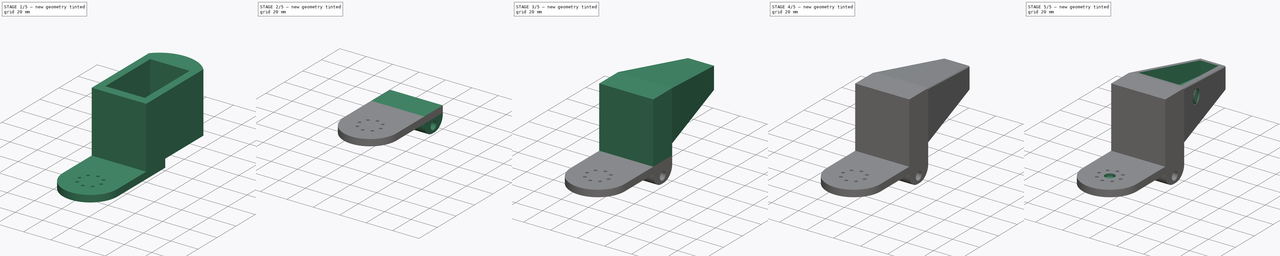
[diagram: build sequence overview — one tinted view per stage of 5, left to right]
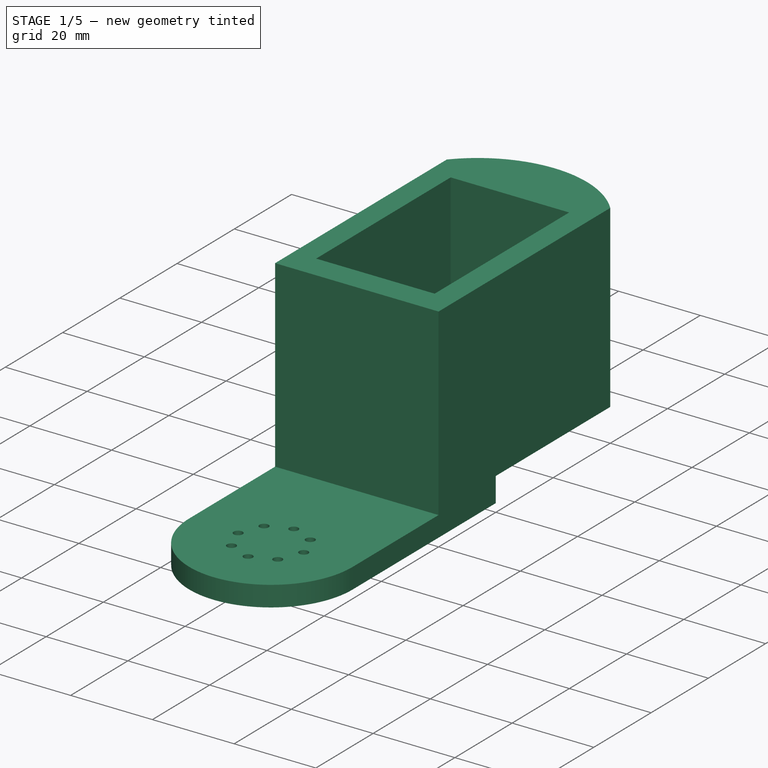
[diagram: stage 1 of 5 — iso view after this stage's code; geometry added in this stage tinted green]
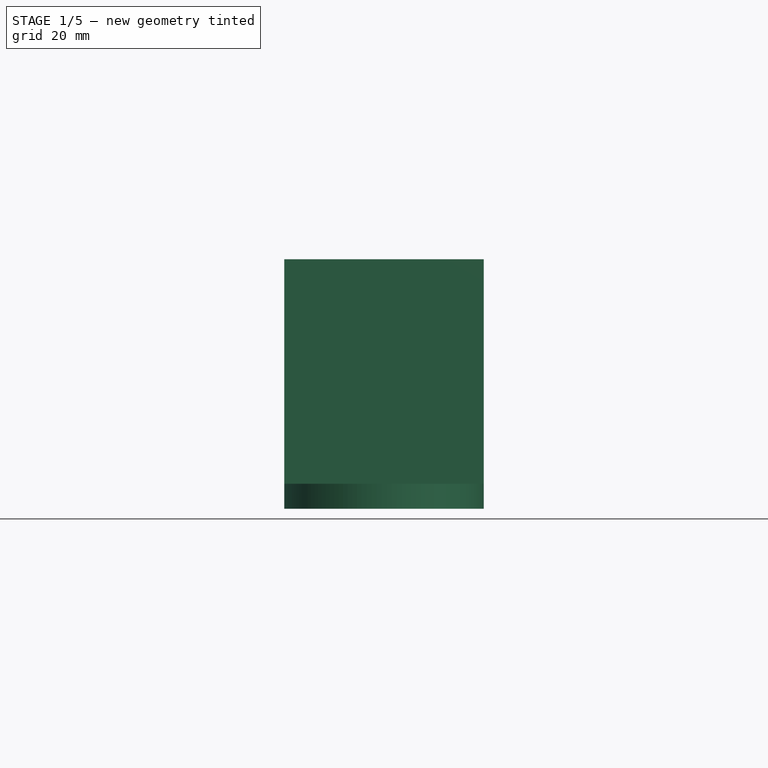
[diagram: stage 1 of 5 — front view after this stage's code; geometry added in this stage tinted green]
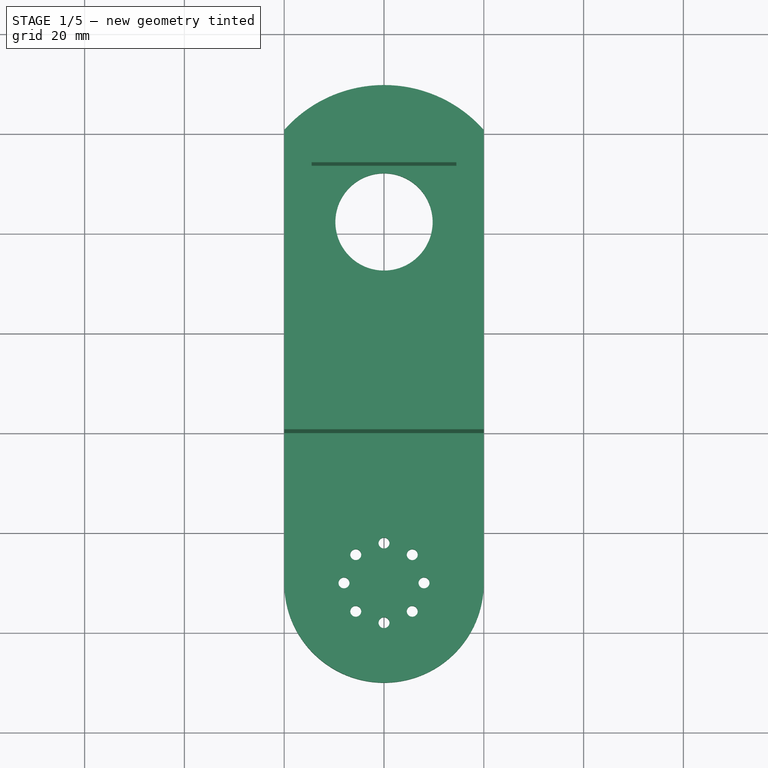
[diagram: stage 1 of 5 — top view after this stage's code; geometry added in this stage tinted green]
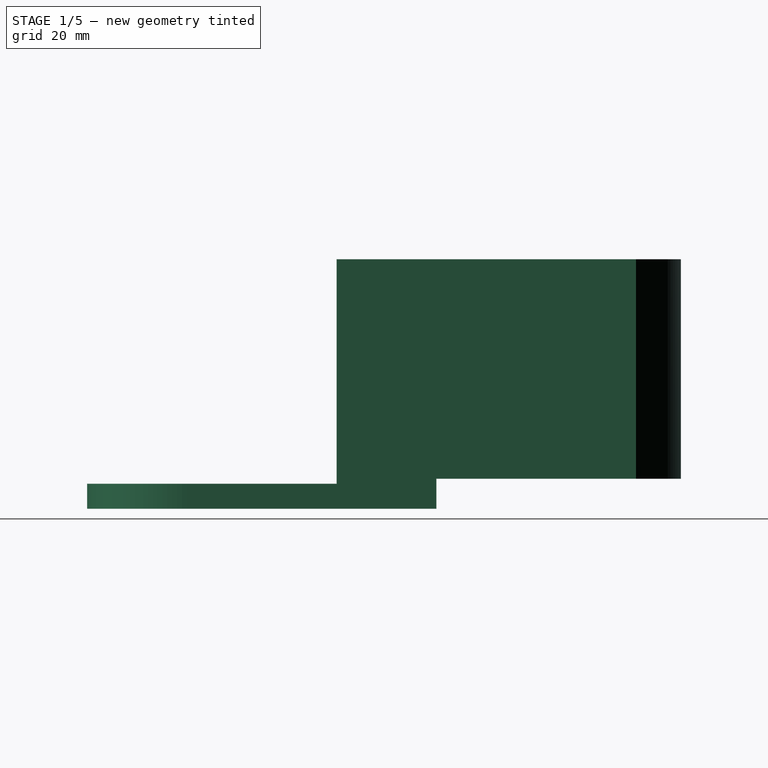
[diagram: stage 1 of 5 — right view after this stage's code; geometry added in this stage tinted green]
FCSTD DOCUMENT  (FreeCAD 0.20R)
Label: Head
License: All rights reserved
LicenseURL: http://en.wikipedia.org/wiki/All_rights_reserved
objects: Sketcher::SketchObject×18, PartDesign::Pocket×11, PartDesign::Fillet×7, PartDesign::Pad×6, PartDesign::Hole×1, PartDesign::Body×1
note: 69 computed .brp shape members not serialized (recipe doc carries the construction recipe); baked Part::Feature solids carry a one-line shape summary decoded from their .brp

FEATURE [Sketcher::SketchObject] Sketch
  AttachmentOffset = pos=(0,0,10) rot=(0,0,1;0rad)
  FullyConstrained = true
  MapMode = 5
  Placement = pos=(0,0,10) rot=(0,0,1;0rad)
  Support = -> [XY_Plane]
  sketch-geometry (8):
    g0: LineSegment StartX=0 StartY=0 StartZ=0 EndX=40 EndY=0 EndZ=0
    g1: LineSegment StartX=40 StartY=0 StartZ=0 EndX=40 EndY=60 EndZ=0
    g2: LineSegment StartX=0 StartY=60 StartZ=0 EndX=0 EndY=0 EndZ=0
    g3: LineSegment StartX=5.5 StartY=6.5 StartZ=0 EndX=34.5 EndY=6.5 EndZ=0
    g4: LineSegment StartX=34.5 StartY=6.5 StartZ=0 EndX=34.5 EndY=53.5 EndZ=0
    g5: LineSegment StartX=34.5 StartY=53.5 StartZ=0 EndX=5.5 EndY=53.5 EndZ=0
    g6: LineSegment StartX=5.5 StartY=53.5 StartZ=0 EndX=5.5 EndY=6.5 EndZ=0
    g7: ArcOfCircle CenterX=20 CenterY=42.25 CenterZ=0 NormalX=0 NormalY=0 NormalZ=1 AngleXU=0 Radius=26.7407 StartAngle=0.725866 EndAngle=2.41573
  constraints (24):
    c: Coincident(g0,g1)
    c: Coincident(g2,g0)
    c: Horizontal(g0)
    c: Vertical(g1)
    c: Vertical(g2)
    c: Coincident(g0,g-1)
    c: Distance(g1) = 60
    c: Distance(g0) = 40
    c: Coincident(g3,g4)
    c: Coincident(g4,g5)
    c: Coincident(g5,g6)
    c: Coincident(g6,g3)
    c: Horizontal(g3)
    c: Horizontal(g5)
    c: Vertical(g4)
    c: Vertical(g6)
    c: Distance(g5) = 29
    c: Distance(g5,g2) = 5.5
    c: Distance(g4) = 47
    c: Distance(g3,g0) = 6.5
    c: Coincident(g7,g1)
    c: Coincident(g7,g2)
    c: Distance(g7,g5) = 11.25
    c: Distance(g2) = 60
FEATURE [PartDesign::Pad] Pad
  Direction = (0,0,1)
  Length = 40
  Length2 = 10
  Profile = -> Sketch
  ReferenceAxis = -> Sketch [N_Axis]
  Type = 0
FEATURE [Sketcher::SketchObject] Sketch001
  FullyConstrained = true
  MapMode = 5
  Placement = pos=(0,0,10) rot=(1,0,0;3.14159rad)
  Support = -> [Pad]
  sketch-geometry (5):
    g0: LineSegment StartX=40 StartY=-60 StartZ=0 EndX=40 EndY=30 EndZ=0
    g1: LineSegment StartX=0 StartY=30 StartZ=0 EndX=0 EndY=-60 EndZ=0
    g2: ArcOfCircle CenterX=20 CenterY=30 CenterZ=0 NormalX=0 NormalY=0 NormalZ=1 AngleXU=0 Radius=20 StartAngle=6.28319 EndAngle=9.42478
    g3: Circle CenterX=20 CenterY=-42.25 CenterZ=0 NormalX=0 NormalY=0 NormalZ=1 AngleXU=0 Radius=9.75
    g4: ArcOfCircle CenterX=20 CenterY=-42.25 CenterZ=0 NormalX=0 NormalY=0 NormalZ=1 AngleXU=0 Radius=26.7407 StartAngle=3.86746 EndAngle=5.55732
  constraints (16):
    c: Vertical(g0)
    c: Vertical(g1)
    c: PointOnObject(g1,g-2)
    c: DistanceY(g0,g0) = 90
    c: DistanceY(g-1,g1) = 30
    c: Distance(g1) = 90
    c: Coincident(g2,g0)
    c: Coincident(g2,g1)
    c: Distance(g0,g2) = 20
    c: Diameter(g3) = 19.5
    c: Distance(g3,g1) = 20
    c: Distance(g3,g0) = 20
    c: Distance(g3,g2) = 72.25
    c: Coincident(g4,g3)
    c: Coincident(g4,g1)
    c: Coincident(g4,g0)
FEATURE [PartDesign::Pad] Pad001
  BaseFeature = -> Pad
  Direction = (0,0,-1)
  Length = 10
  Length2 = 10
  Profile = -> Sketch001
  ReferenceAxis = -> Sketch001 [N_Axis]
  Type = 0
FEATURE [Sketcher::SketchObject] Sketch002
  FullyConstrained = true
  MapMode = 5
  Placement = pos=(0,0,0) rot=(0.57735,-0.57735,-0.57735;2.0944rad)
  Support = -> [Pad001]
  sketch-geometry (4):
    g0: LineSegment StartX=-20 StartY=0 StartZ=0 EndX=-76 EndY=0 EndZ=0
    g1: LineSegment StartX=-76 StartY=0 StartZ=0 EndX=-76 EndY=6 EndZ=0
    g2: LineSegment StartX=-76 StartY=6 StartZ=0 EndX=-20 EndY=6 EndZ=0
    g3: LineSegment StartX=-20 StartY=6 StartZ=0 EndX=-20 EndY=0 EndZ=0
  constraints (12):
    c: Coincident(g0,g1)
    c: Coincident(g1,g2)
    c: Coincident(g2,g3)
    c: Coincident(g3,g0)
    c: Horizontal(g0)
    c: Horizontal(g2)
    c: Vertical(g1)
    c: Vertical(g3)
    c: PointOnObject(g0,g-1)
    c: Distance(g2) = 56
    c: Distance(g3) = 6
    c: Distance(g0,g-1) = 20
FEATURE [PartDesign::Pocket] Pocket
  BaseFeature = -> Pad001
  Direction = (1,0,0)
  Length = 100
  Length2 = 5
  Profile = -> Sketch002
  ReferenceAxis = -> Sketch002 [N_Axis]
  Type = 0
FEATURE [Sketcher::SketchObject] Sketch003
  FullyConstrained = true
  MapMode = 5
  Placement = pos=(0,0,10) rot=(0,0,1;0rad)
  Support = -> [Pocket]
  sketch-geometry (4):
    g0: LineSegment StartX=0 StartY=0 StartZ=0 EndX=40 EndY=0 EndZ=0
    g1: LineSegment StartX=40 StartY=0 StartZ=0 EndX=40 EndY=-30 EndZ=0
    g2: ArcOfCircle CenterX=20 CenterY=-30 CenterZ=0 NormalX=0 NormalY=0 NormalZ=1 AngleXU=0 Radius=20 StartAngle=3.14159 EndAngle=6.28319
    g3: LineSegment StartX=3.6e-15 StartY=-30 StartZ=0 EndX=0 EndY=0 EndZ=0
  constraints (11):
    c: Coincident(g-1,g0)
    c: PointOnObject(g0,g-1)
    c: Coincident(g0,g1)
    c: Vertical(g1)
    c: Tangent(g1,g2) = 1.5708
    c: PointOnObject(g2,g-2)
    c: Coincident(g2,g3)
    c: Coincident(g3,g0)
    c: Distance(g1) = 30
    c: Distance(g0) = 40
    c: Distance(g3) = 30
FEATURE [PartDesign::Pocket] Pocket001
  BaseFeature = -> Pocket
  Direction = (0,0,-1)
  Length = 5
  Length2 = 5
  Profile = -> Sketch003
  ReferenceAxis = -> Sketch003 [N_Axis]
  Type = 0
FEATURE [Sketcher::SketchObject] Sketch005
  FullyConstrained = true
  MapMode = 5
  Placement = pos=(0,0,-4e-15) rot=(1,0,0;3.14159rad)
  sketch-geometry (8):
    g0: Circle CenterX=11.98 CenterY=30 CenterZ=0 NormalX=0 NormalY=0 NormalZ=1 AngleXU=0 Radius=1.1
    g1: Circle CenterX=14.34 CenterY=35.7 CenterZ=0 NormalX=0 NormalY=0 NormalZ=1 AngleXU=0 Radius=1.1
    g2: Circle CenterX=20 CenterY=37.98 CenterZ=0 NormalX=0 NormalY=0 NormalZ=1 AngleXU=0 Radius=1.1
    g3: Circle CenterX=25.66 CenterY=35.7 CenterZ=0 NormalX=0 NormalY=0 NormalZ=1 AngleXU=0 Radius=1.1
    g4: Circle CenterX=28.02 CenterY=30 CenterZ=0 NormalX=0 NormalY=0 NormalZ=1 AngleXU=0 Radius=1.1
    g5: Circle CenterX=25.66 CenterY=24.35 CenterZ=0 NormalX=0 NormalY=0 NormalZ=1 AngleXU=0 Radius=1.1
    g6: Circle CenterX=20 CenterY=22.02 CenterZ=0 NormalX=0 NormalY=0 NormalZ=1 AngleXU=0 Radius=1.1
    g7: Circle CenterX=14.34 CenterY=24.34 CenterZ=0 NormalX=0 NormalY=0 NormalZ=1 AngleXU=0 Radius=1.1
  constraints (24):
    c: Distance(g0,g-2) = 11.98
    c: Distance(g0,g-1) = 30
    c: Diameter(g0) = 2.2
    c: Diameter(g1) = 2.2
    c: Diameter(g2) = 2.2
    c: Diameter(g3) = 2.2
    c: Diameter(g4) = 2.2
    c: Diameter(g5) = 2.2
    c: Diameter(g6) = 2.2
    c: Diameter(g7) = 2.2
    c: Distance(g4,g-1) = 30
    c: Distance(g6,g-2) = 20
    c: Distance(g2,g-2) = 20
    c: Distance(g1,g-2) = 14.34
    c: Distance(g7,g-2) = 14.34
    c: Distance(g3,g-2) = 25.66
    c: DistanceX(g-2,g5) = 25.66
    c: Distance(g4,g-2) = 28.02
    c: Distance(g6,g-1) = 22.02
    c: Distance(g2,g-1) = 37.98
    c: Distance(g7,g-1) = 24.34
    c: Distance(g5,g-1) = 24.35
    c: Distance(g3,g-1) = 35.7
    c: Distance(g1,g-1) = 35.7
FEATURE [PartDesign::Pocket] Pocket002
  BaseFeature = -> Pocket001
  Direction = (0,0,1)
  Length = 5
  Length2 = 5
  Profile = -> Sketch005
  ReferenceAxis = -> Sketch005 [N_Axis]
  Type = 0
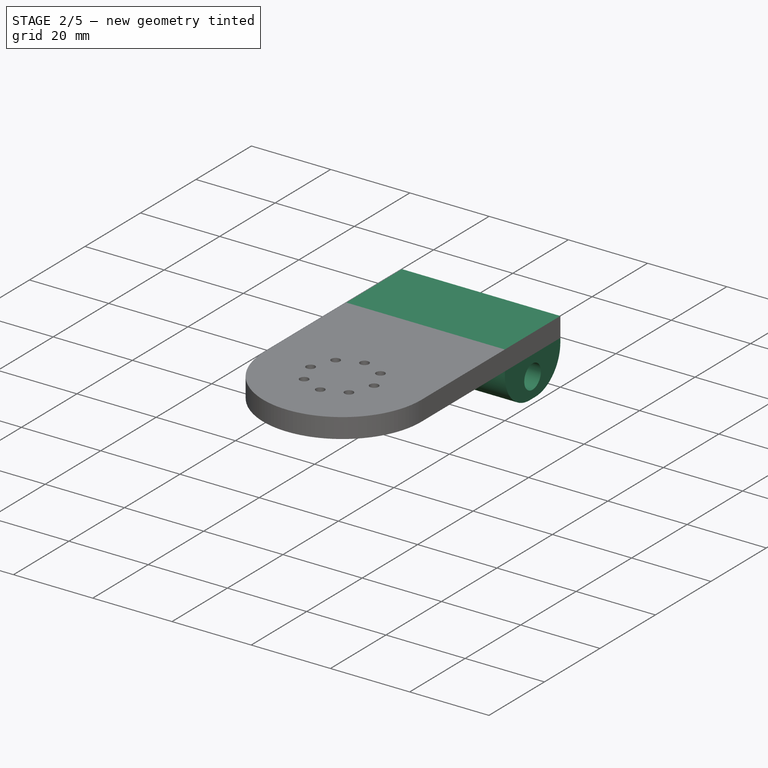
[diagram: stage 2 of 5 — iso view after this stage's code; geometry added in this stage tinted green]
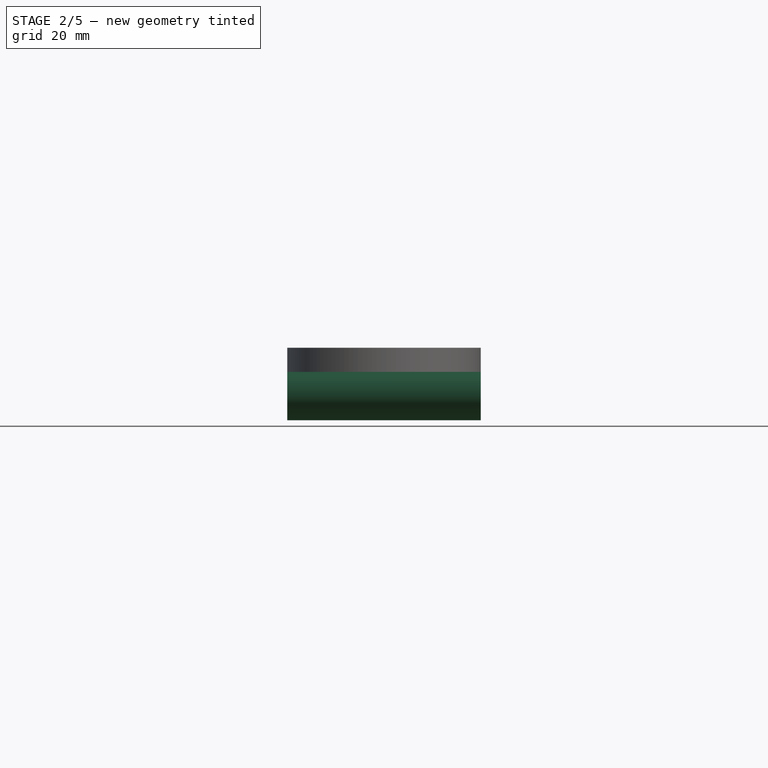
[diagram: stage 2 of 5 — front view after this stage's code; geometry added in this stage tinted green]
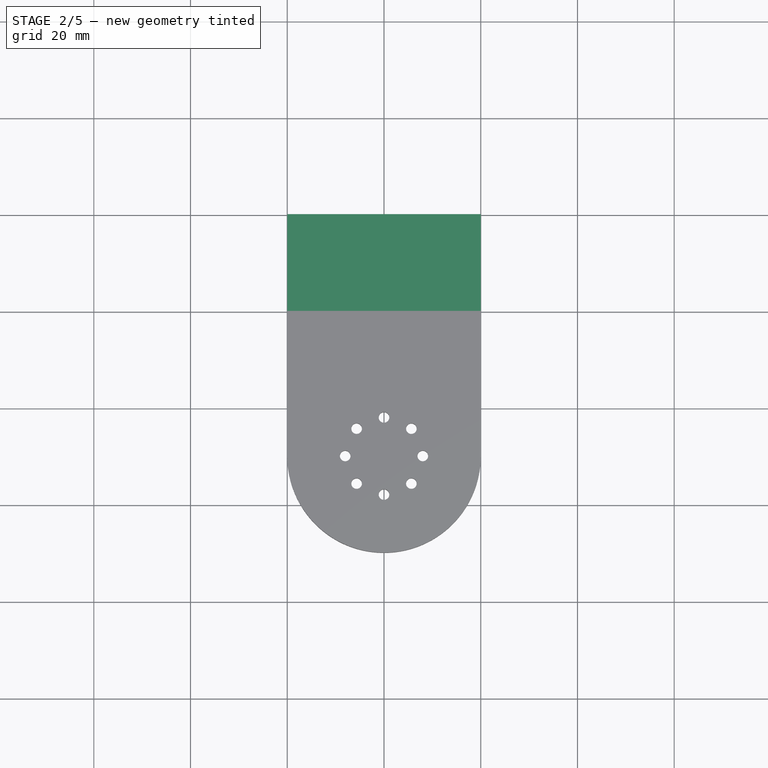
[diagram: stage 2 of 5 — top view after this stage's code; geometry added in this stage tinted green]
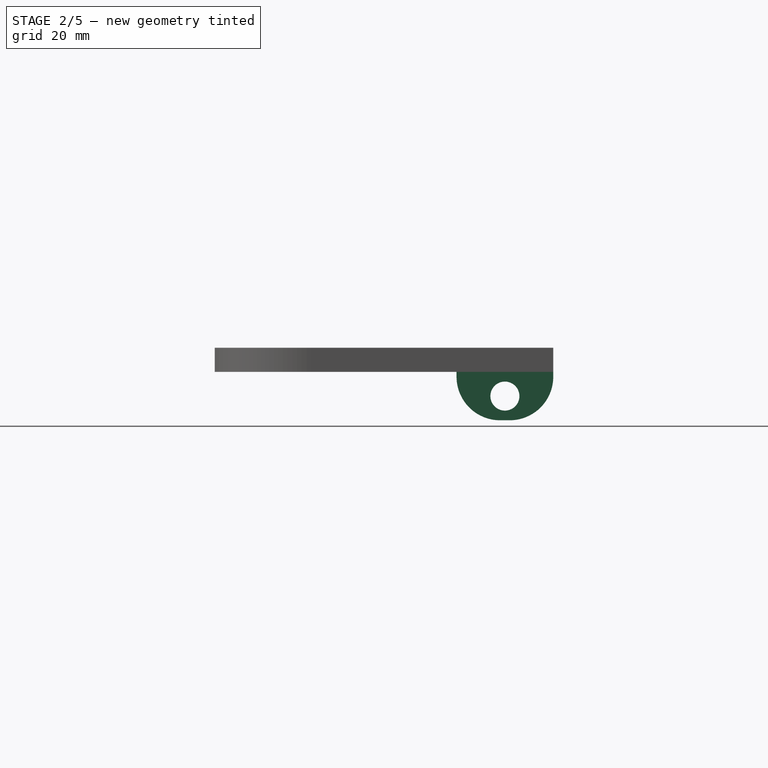
[diagram: stage 2 of 5 — right view after this stage's code; geometry added in this stage tinted green]
FEATURE [Sketcher::SketchObject] Sketch006
  FullyConstrained = true
  MapMode = 5
  Placement = pos=(0,0,-3.6e-15) rot=(1,0,0;3.14159rad)
  Support = -> [Pocket002]
  sketch-geometry (4):
    g0: LineSegment StartX=0 StartY=0 StartZ=0 EndX=40 EndY=0 EndZ=0
    g1: LineSegment StartX=40 StartY=0 StartZ=0 EndX=40 EndY=-20 EndZ=0
    g2: LineSegment StartX=40 StartY=-20 StartZ=0 EndX=0 EndY=-20 EndZ=0
    g3: LineSegment StartX=0 StartY=-20 StartZ=0 EndX=0 EndY=0 EndZ=0
  constraints (11):
    c: Coincident(g0,g1)
    c: Coincident(g1,g2)
    c: Coincident(g2,g3)
    c: Coincident(g3,g0)
    c: Horizontal(g0)
    c: Horizontal(g2)
    c: Vertical(g1)
    c: Vertical(g3)
    c: Coincident(g0,g-1)
    c: Distance(g0) = 40
    c: Distance(g3) = 20
FEATURE [PartDesign::Pad] Pad002
  BaseFeature = -> Pocket002
  Direction = (0,0,-1)
  Length = 10
  Length2 = 10
  Profile = -> Sketch006
  ReferenceAxis = -> Sketch006 [N_Axis]
  Type = 0
FEATURE [PartDesign::Fillet] Fillet
  Base = -> Pad002 [Edge82]
  BaseFeature = -> Pad002
  Radius = 9
  SupportTransform = false
  UseAllEdges = false
FEATURE [PartDesign::Fillet] Fillet001
  Base = -> Fillet [Edge20]
  BaseFeature = -> Fillet
  Radius = 9
  SupportTransform = false
  UseAllEdges = false
FEATURE [Sketcher::SketchObject] Sketch007
  FullyConstrained = true
  MapMode = 5
  Placement = pos=(40,0,0) rot=(0.57735,0.57735,0.57735;2.0944rad)
  Support = -> [Fillet001]
  sketch-geometry (1):
    g0: Circle CenterX=10 CenterY=-5 CenterZ=0 NormalX=0 NormalY=0 NormalZ=1 AngleXU=0 Radius=2.5
  constraints (3):
    c: Diameter(g0) = 5
    c: Distance(g0,g-1) = 5
    c: Distance(g0,g-2) = 10
FEATURE [PartDesign::Hole] Hole
  BaseFeature = -> Fillet001
  CustomThreadClearance = 0
  Depth = 50
  DepthType = 0
  Diameter = 6
  DrillForDepth = false
  DrillPoint = 1
  DrillPointAngle = 118
  HoleCutCountersinkAngle = 90
  HoleCutCustomValues = false
  HoleCutDepth = 0
  HoleCutDiameter = 6.1
  HoleCutType = 0
  ModelThread = false
  Profile = -> Sketch007
  Tapered = false
  TaperedAngle = 90
  ThreadClass = 0
  ThreadDepth = 50
  ThreadDepthType = 0
  ThreadDirection = 0
  ThreadFit = 0
  ThreadSize = 0
  ThreadType = 0
  Threaded = false
  UseCustomThreadClearance = false
FEATURE [Sketcher::SketchObject] Sketch009
  FullyConstrained = true
  MapMode = 5
  Placement = pos=(0,0,0) rot=(1,0,0;1.5708rad)
  Support = -> [Hole]
  sketch-geometry (4):
    g0: LineSegment StartX=0 StartY=5 StartZ=0 EndX=40 EndY=5 EndZ=0
    g1: LineSegment StartX=40 StartY=5 StartZ=0 EndX=40 EndY=50 EndZ=0
    g2: LineSegment StartX=40 StartY=50 StartZ=0 EndX=0 EndY=50 EndZ=0
    g3: LineSegment StartX=0 StartY=50 StartZ=0 EndX=0 EndY=5 EndZ=0
  constraints (12):
    c: Coincident(g0,g1)
    c: Coincident(g1,g2)
    c: Coincident(g2,g3)
    c: Coincident(g3,g0)
    c: Horizontal(g0)
    c: Horizontal(g2)
    c: Vertical(g1)
    c: Vertical(g3)
    c: PointOnObject(g0,g-2)
    c: Distance(g2) = 40
    c: Distance(g3) = 45
    c: Distance(g-1,g0) = 5
FEATURE [PartDesign::Pocket] Pocket003
  BaseFeature = -> Hole
  Direction = (0,1,-2e-16)
  Length = 5
  Length2 = 5
  Profile = -> Sketch009
  ReferenceAxis = -> Sketch009 [N_Axis]
  Type = 1
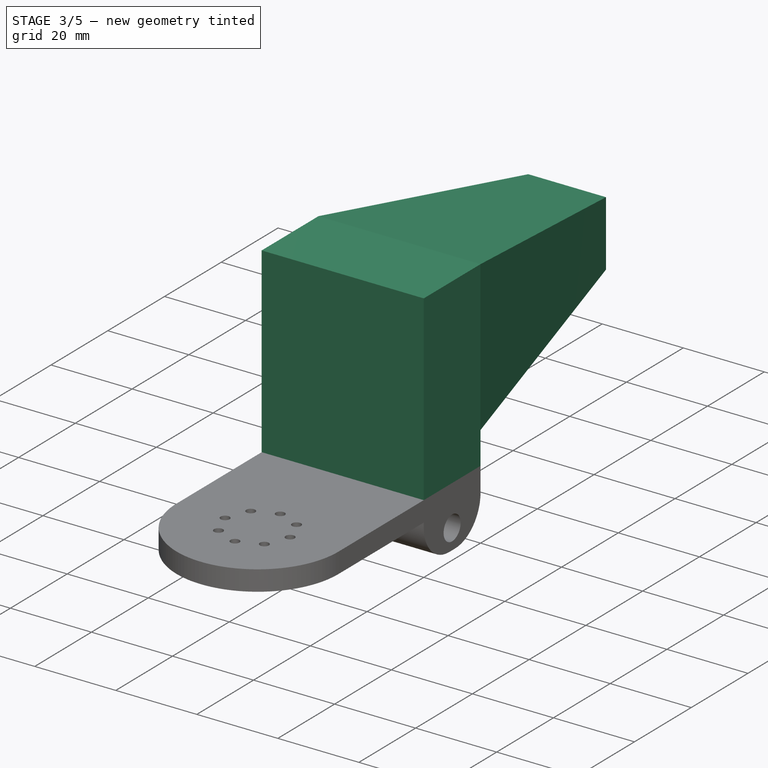
[diagram: stage 3 of 5 — iso view after this stage's code; geometry added in this stage tinted green]
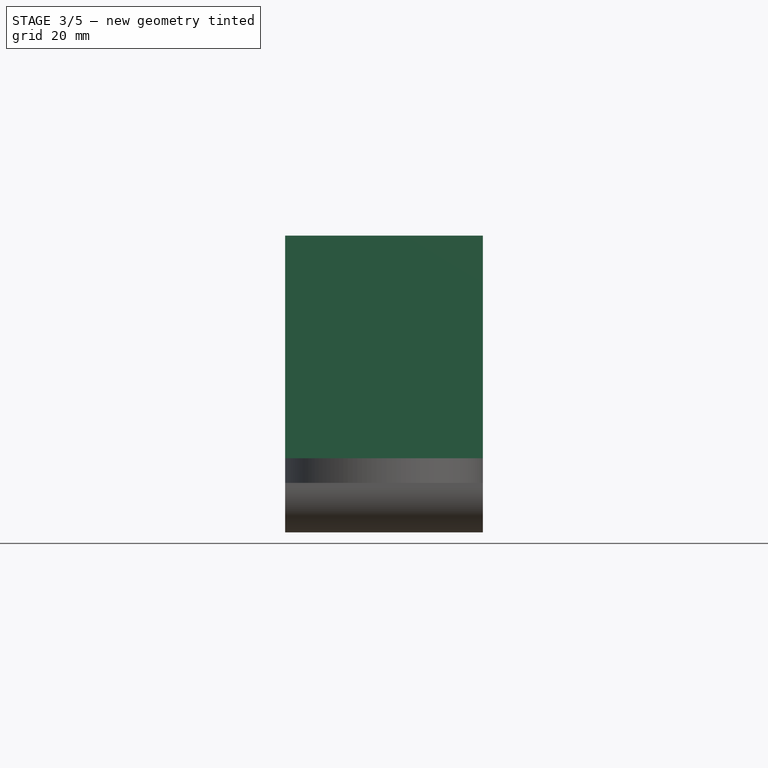
[diagram: stage 3 of 5 — front view after this stage's code; geometry added in this stage tinted green]
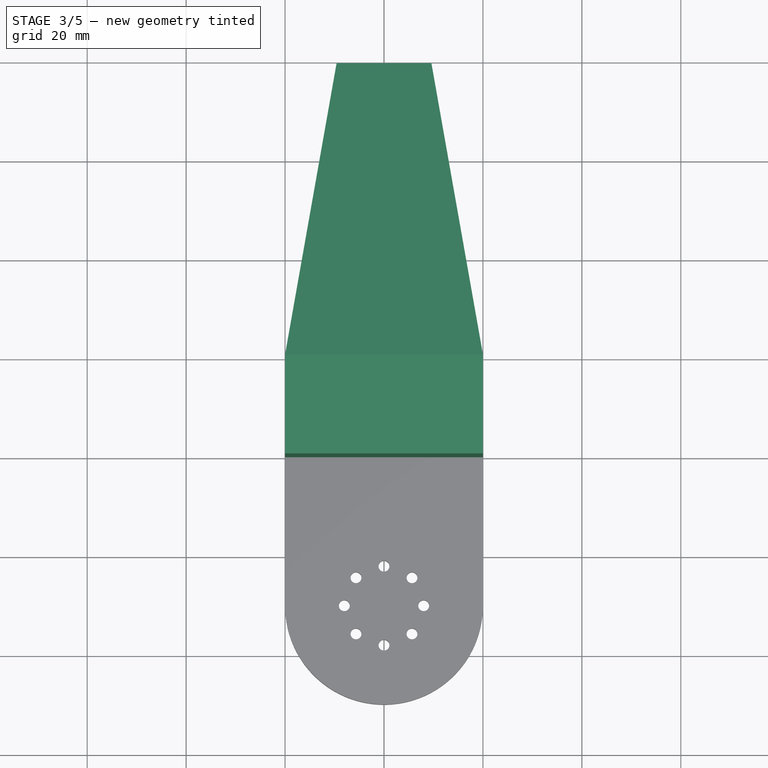
[diagram: stage 3 of 5 — top view after this stage's code; geometry added in this stage tinted green]
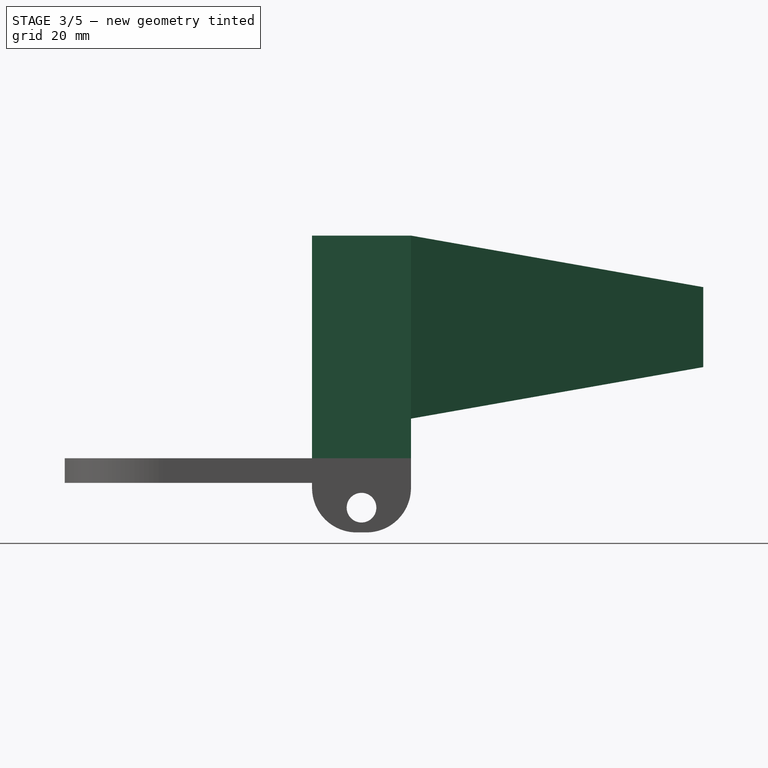
[diagram: stage 3 of 5 — right view after this stage's code; geometry added in this stage tinted green]
FEATURE [Sketcher::SketchObject] Sketch010
  FullyConstrained = true
  MapMode = 5
  Placement = pos=(0,20,0) rot=(0,0.707107,0.707107;3.14159rad)
  Support = -> [Pocket003]
  sketch-geometry (4):
    g0: LineSegment StartX=0 StartY=0 StartZ=0 EndX=-40 EndY=0 EndZ=0
    g1: LineSegment StartX=-40 StartY=0 StartZ=0 EndX=-40 EndY=5 EndZ=0
    g2: LineSegment StartX=-40 StartY=5 StartZ=0 EndX=0 EndY=5 EndZ=0
    g3: LineSegment StartX=0 StartY=5 StartZ=0 EndX=0 EndY=0 EndZ=0
  constraints (11):
    c: Coincident(g0,g1)
    c: Coincident(g1,g2)
    c: Coincident(g2,g3)
    c: Coincident(g3,g0)
    c: Horizontal(g0)
    c: Horizontal(g2)
    c: Vertical(g1)
    c: Vertical(g3)
    c: Coincident(g0,g-1)
    c: Distance(g2) = 40
    c: Distance(g1) = 5
FEATURE [PartDesign::Pad] Pad003
  BaseFeature = -> Pocket003
  Direction = (0,1,-2e-16)
  Length = 50
  Length2 = 10
  Profile = -> Sketch010
  ReferenceAxis = -> Sketch010 [N_Axis]
  Type = 0
FEATURE [Sketcher::SketchObject] Sketch011
  FullyConstrained = true
  MapMode = 5
  Placement = pos=(0,1.1e-15,5) rot=(0,0,1;0rad)
  Support = -> [Pad003]
  sketch-geometry (4):
    g0: LineSegment StartX=0 StartY=0 StartZ=0 EndX=40 EndY=0 EndZ=0
    g1: LineSegment StartX=40 StartY=0 StartZ=0 EndX=40 EndY=70 EndZ=0
    g2: LineSegment StartX=40 StartY=70 StartZ=0 EndX=0 EndY=70 EndZ=0
    g3: LineSegment StartX=0 StartY=70 StartZ=0 EndX=0 EndY=0 EndZ=0
  constraints (11):
    c: Coincident(g0,g1)
    c: Coincident(g1,g2)
    c: Coincident(g2,g3)
    c: Coincident(g3,g0)
    c: Horizontal(g0)
    c: Horizontal(g2)
    c: Vertical(g1)
    c: Vertical(g3)
    c: Coincident(g0,g-1)
    c: Distance(g2) = 40
    c: Distance(g3) = 70
FEATURE [PartDesign::Pad] Pad004
  BaseFeature = -> Pad003
  Direction = (0,2e-16,1)
  Length = 45
  Length2 = 10
  Profile = -> Sketch011
  ReferenceAxis = -> Sketch011 [N_Axis]
  Type = 0
FEATURE [Sketcher::SketchObject] Sketch012
  FullyConstrained = true
  MapMode = 5
  Placement = pos=(0,70,0) rot=(0,0.707107,0.707107;3.14159rad)
  Support = -> [Pad004]
  sketch-geometry (4):
    g0: LineSegment StartX=0 StartY=0 StartZ=0 EndX=-40 EndY=0 EndZ=0
    g1: LineSegment StartX=-40 StartY=0 StartZ=0 EndX=-40 EndY=50 EndZ=0
    g2: LineSegment StartX=-40 StartY=50 StartZ=0 EndX=0 EndY=50 EndZ=0
    g3: LineSegment StartX=0 StartY=50 StartZ=0 EndX=0 EndY=0 EndZ=0
  constraints (11):
    c: Coincident(g0,g1)
    c: Coincident(g1,g2)
    c: Coincident(g2,g3)
    c: Coincident(g3,g0)
    c: Horizontal(g0)
    c: Horizontal(g2)
    c: Vertical(g1)
    c: Vertical(g3)
    c: Coincident(g0,g-1)
    c: Distance(g2) = 40
    c: Distance(g1) = 50
FEATURE [PartDesign::Pad] Pad005
  BaseFeature = -> Pad004
  Direction = (0,1,-2e-16)
  Length = 50
  Length2 = 10
  Profile = -> Sketch012
  ReferenceAxis = -> Sketch012 [N_Axis]
  Type = 0
FEATURE [Sketcher::SketchObject] Sketch013
  FullyConstrained = true
  MapMode = 5
  Placement = pos=(0,1.14e-14,50) rot=(0,0,1;0rad)
  Support = -> [Pad005]
  sketch-geometry (6):
    g0: LineSegment StartX=40 StartY=20 StartZ=0 EndX=29.5811 EndY=79.0885 EndZ=0
    g1: LineSegment StartX=29.5811 StartY=79.0885 StartZ=0 EndX=10.4189 EndY=79.0885 EndZ=0
    g2: LineSegment StartX=10.4189 StartY=79.0885 StartZ=0 EndX=0 EndY=20 EndZ=0
    g3: LineSegment StartX=0 StartY=20 StartZ=0 EndX=0 EndY=120 EndZ=0
    g4: LineSegment StartX=0 StartY=120 StartZ=0 EndX=40 EndY=120 EndZ=0
    g5: LineSegment StartX=40 StartY=120 StartZ=0 EndX=40 EndY=20 EndZ=0
  constraints (18):
    c: PointOnObject(g2,g-2)
    c: Coincident(g0,g1)
    c: Horizontal(g1)
    c: Coincident(g1,g2)
    c: Distance(g-1,g2) = 20
    c: Distance(g2) = 60
    c: Distance(g0) = 60
    c: Coincident(g2,g3)
    c: PointOnObject(g3,g-2)
    c: Coincident(g3,g4)
    c: Horizontal(g4)
    c: Coincident(g4,g5)
    c: Coincident(g5,g0)
    c: Vertical(g5)
    c: Distance(g3) = 100
    c: Distance(g4) = 40
    c: Distance(g5) = 100
    c: Angle(g5,g0) = 0.174533
FEATURE [PartDesign::Pocket] Pocket004
  BaseFeature = -> Pad005
  Direction = (0,-2e-16,-1)
  Length = 5
  Length2 = 5
  Profile = -> Sketch013
  ReferenceAxis = -> Sketch013 [N_Axis]
  Type = 1
FEATURE [Sketcher::SketchObject] Sketch014
  FullyConstrained = true
  MapMode = 5
  Placement = pos=(40,0,0) rot=(0.57735,0.57735,0.57735;2.0944rad)
  Support = -> [Pocket004]
  sketch-geometry (7):
    g0: LineSegment StartX=80 StartY=0 StartZ=0 EndX=80 EndY=50 EndZ=0
    g1: LineSegment StartX=20 StartY=0 StartZ=0 EndX=20 EndY=13 EndZ=0
    g2: LineSegment StartX=20 StartY=13 StartZ=0 EndX=84.0125 EndY=24.2871 EndZ=0
    g3: LineSegment StartX=84.0125 StartY=24.2871 StartZ=0 EndX=84.0125 EndY=38.7129 EndZ=0
    g4: LineSegment StartX=84.0125 StartY=38.7129 StartZ=0 EndX=20 EndY=50 EndZ=0
    g5: LineSegment StartX=20 StartY=50 StartZ=0 EndX=80 EndY=50 EndZ=0
    g6: LineSegment StartX=20 StartY=0 StartZ=0 EndX=80 EndY=0 EndZ=0
  constraints (21):
    c: Vertical(g0)
    c: PointOnObject(g1,g-1)
    c: Vertical(g1)
    c: Coincident(g1,g2)
    c: Coincident(g2,g3)
    c: Vertical(g3)
    c: Coincident(g3,g4)
    c: Coincident(g4,g5)
    c: Coincident(g5,g0)
    c: Horizontal(g5)
    c: Coincident(g1,g6)
    c: Coincident(g6,g0)
    c: Horizontal(g6)
    c: Distance(g6) = 60
    c: Distance(g0) = 50
    c: Distance(g5) = 60
    c: Distance(g1) = 13
    c: Angle(g1,g2) = 1.74533
    c: Angle(g4,g5) = 0.174533
    c: Distance(g4) = 65
    c: Distance(g-1,g1) = 20
FEATURE [PartDesign::Pocket] Pocket005
  BaseFeature = -> Pocket004
  Direction = (-1,0,0)
  Length = 5
  Length2 = 5
  Profile = -> Sketch014
  ReferenceAxis = -> Sketch014 [N_Axis]
  Type = 1
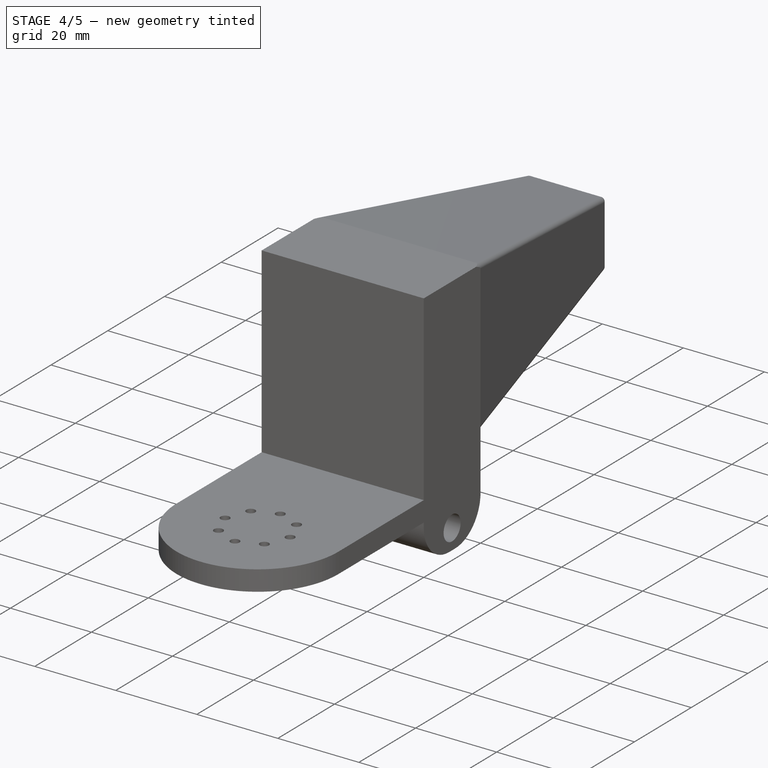
[diagram: stage 4 of 5 — iso view after this stage's code; geometry added in this stage tinted green]
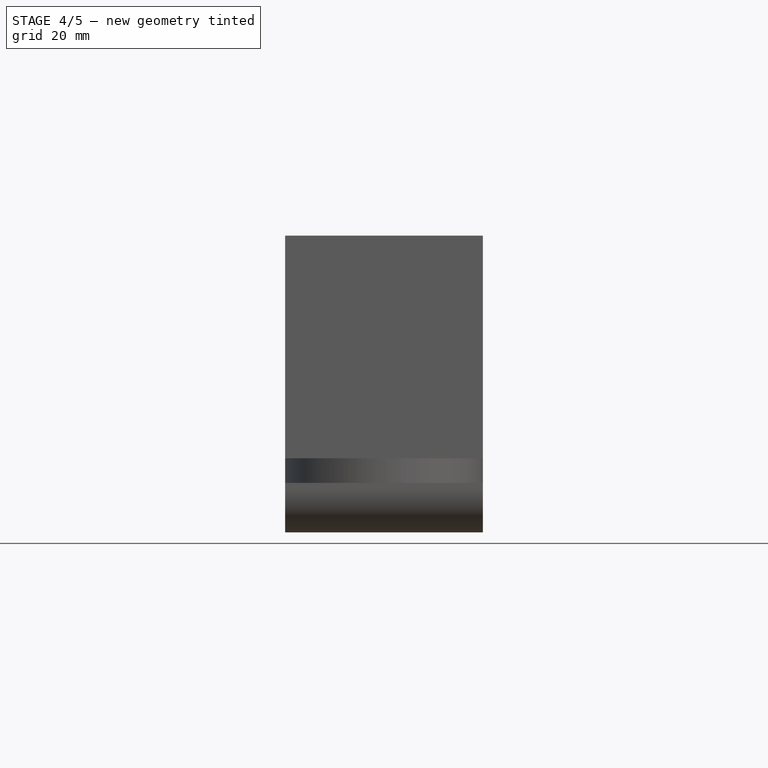
[diagram: stage 4 of 5 — front view after this stage's code; geometry added in this stage tinted green]
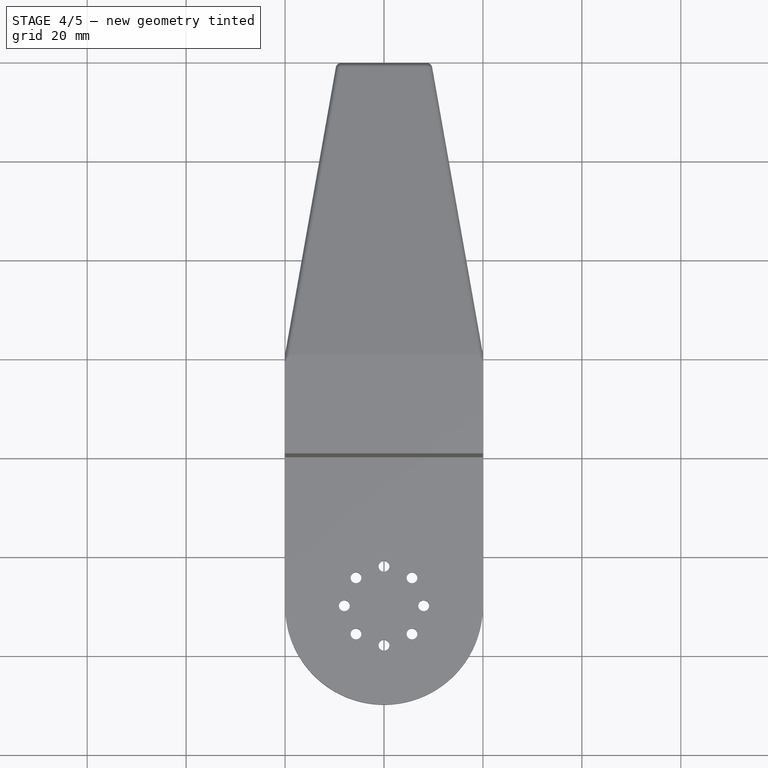
[diagram: stage 4 of 5 — top view after this stage's code; geometry added in this stage tinted green]
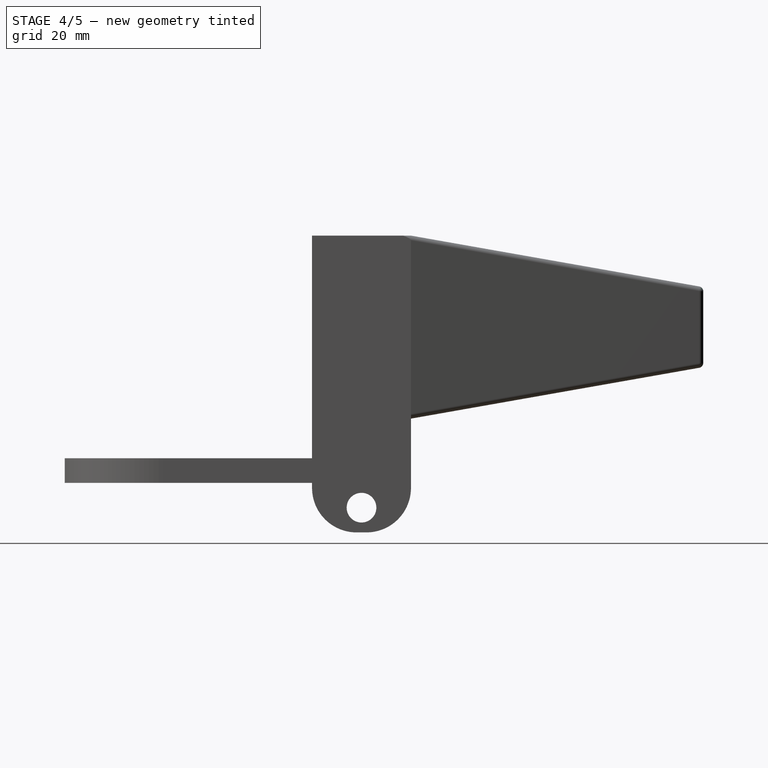
[diagram: stage 4 of 5 — right view after this stage's code; geometry added in this stage tinted green]
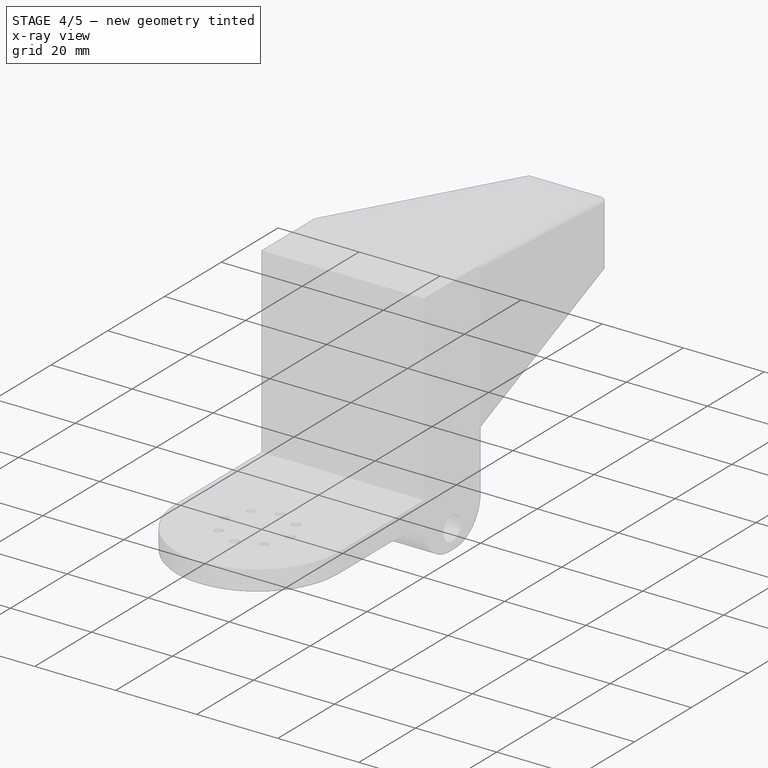
[diagram: stage 4 of 5 — x-ray composite at the iso view; earlier geometry ghosted, this stage's added geometry solid]
FEATURE [PartDesign::Fillet] Fillet002
  Base = -> Pocket005 [Edge75]
  BaseFeature = -> Pocket005
  Radius = 1
  SupportTransform = false
  UseAllEdges = false
FEATURE [PartDesign::Fillet] Fillet003
  Base = -> Fillet002 [Edge9]
  BaseFeature = -> Fillet002
  Radius = 1
  SupportTransform = false
  UseAllEdges = false
FEATURE [PartDesign::Fillet] Fillet004
  Base = -> Fillet003 [Edge44]
  BaseFeature = -> Fillet003
  Radius = 1
  SupportTransform = false
  UseAllEdges = false
FEATURE [PartDesign::Fillet] Fillet005
  Base = -> Fillet004 [Edge30]
  BaseFeature = -> Fillet004
  Radius = 1
  SupportTransform = false
  UseAllEdges = false
FEATURE [PartDesign::Fillet] Fillet006
  Base = -> Fillet005 [Face9]
  BaseFeature = -> Fillet005
  Radius = 1
  SupportTransform = false
  UseAllEdges = false
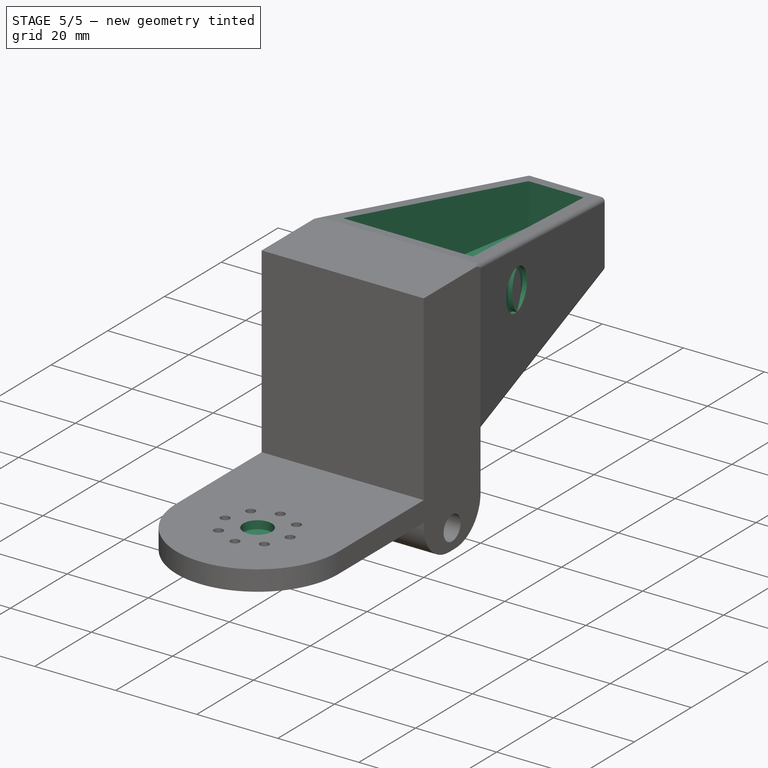
[diagram: stage 5 of 5 — iso view after this stage's code; geometry added in this stage tinted green]
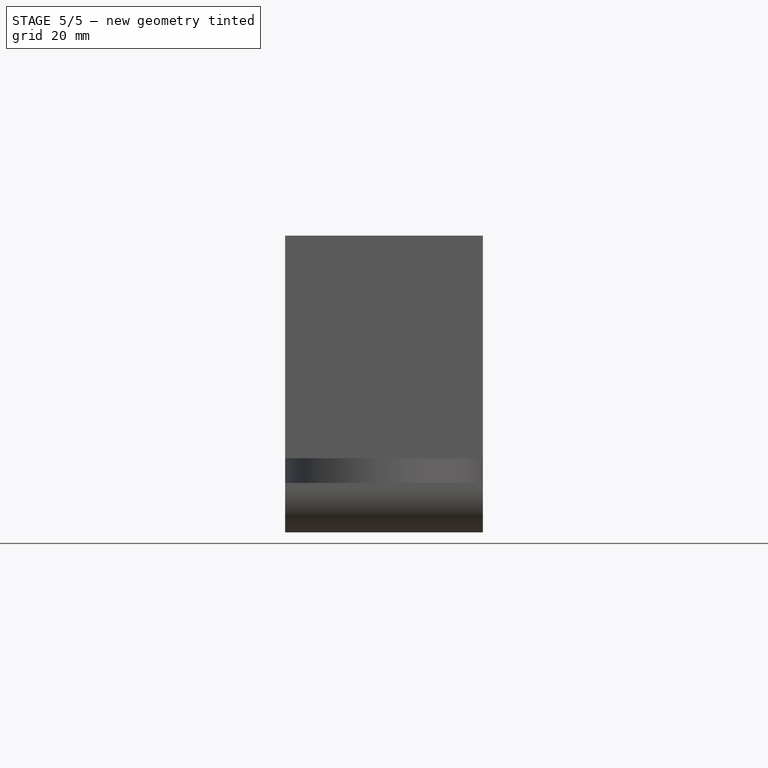
[diagram: stage 5 of 5 — front view after this stage's code; geometry added in this stage tinted green]
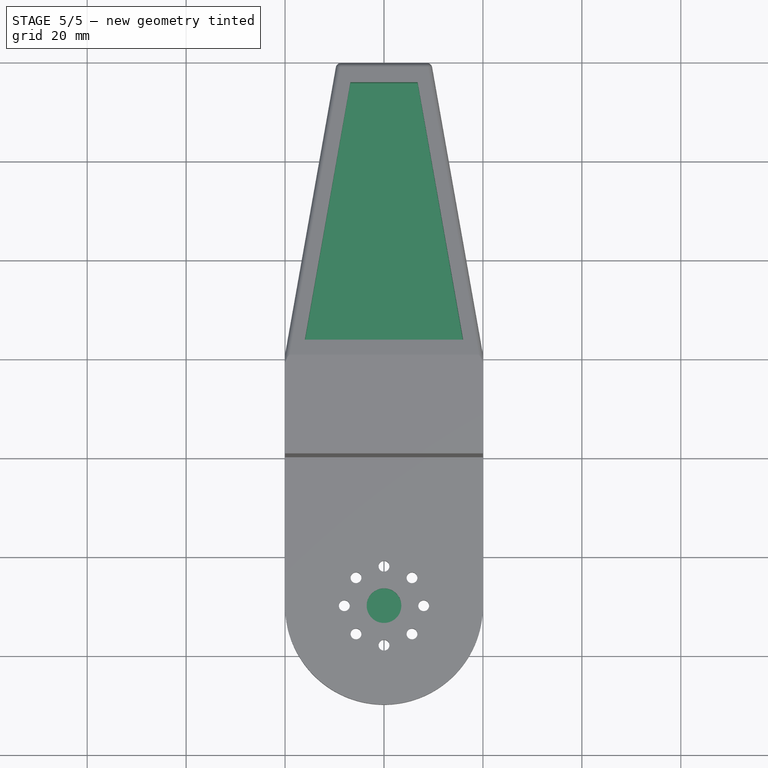
[diagram: stage 5 of 5 — top view after this stage's code; geometry added in this stage tinted green]
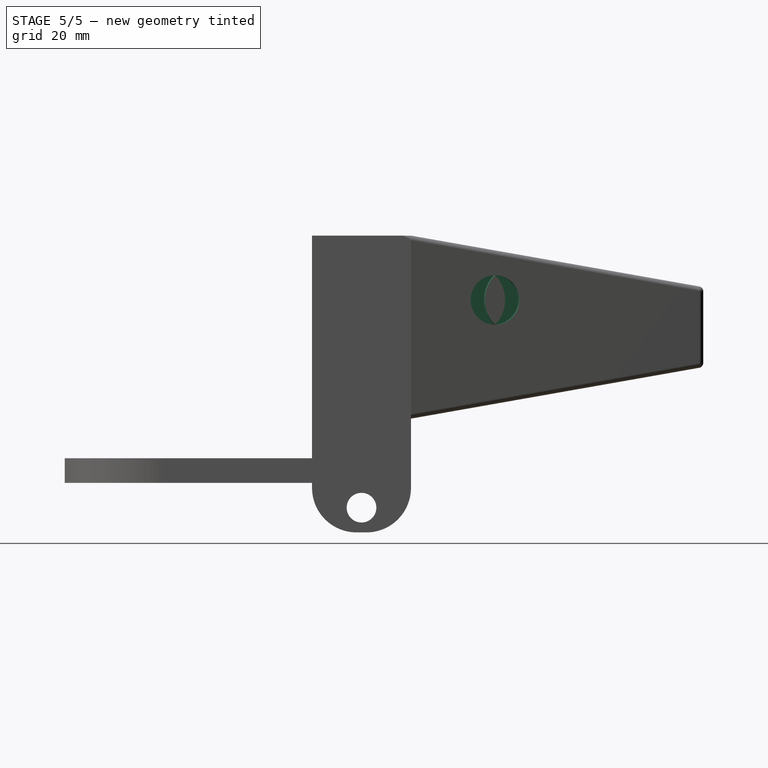
[diagram: stage 5 of 5 — right view after this stage's code; geometry added in this stage tinted green]
FEATURE [Sketcher::SketchObject] Sketch015
  FullyConstrained = true
  MapMode = 5
  Placement = pos=(0,79.0885,-1.81e-14) rot=(0,0.707107,0.707107;3.14159rad)
  Support = -> [Fillet006]
  sketch-geometry (9):
    g0: LineSegment StartX=-28.74 StartY=26 StartZ=0 EndX=-28.74 EndY=27 EndZ=0
    g1: LineSegment StartX=-28.74 StartY=27 StartZ=0 EndX=-20.5832 EndY=30.8036 EndZ=0
    g2: LineSegment StartX=-20.5832 StartY=30.8036 StartZ=0 EndX=-20.5832 EndY=38.7036 EndZ=0
    g3: LineSegment StartX=-20.5832 StartY=38.7036 StartZ=0 EndX=-19.4168 EndY=38.7036 EndZ=0
    g4: LineSegment StartX=-19.4168 StartY=38.7036 StartZ=0 EndX=-19.4168 EndY=30.8036 EndZ=0
    g5: LineSegment StartX=-19.4168 StartY=30.8036 StartZ=0 EndX=-11.26 EndY=27 EndZ=0
    g6: LineSegment StartX=-11.26 StartY=27 StartZ=0 EndX=-11.26 EndY=26 EndZ=0
    g7: LineSegment StartX=-11.26 StartY=26 StartZ=0 EndX=-20 EndY=30.0755 EndZ=0
    g8: LineSegment StartX=-20 StartY=30.0755 StartZ=0 EndX=-28.74 EndY=26 EndZ=0
  constraints (27):
    c: Coincident(g0,g1)
    c: Coincident(g1,g2)
    c: Vertical(g2)
    c: Coincident(g2,g3)
    c: Coincident(g3,g4)
    c: Vertical(g4)
    c: Coincident(g4,g5)
    c: Coincident(g5,g6)
    c: Coincident(g6,g7)
    c: Coincident(g7,g8)
    c: Coincident(g8,g0)
    c: Distance(g6,g-1) = 26
    c: Distance(g6,g-2) = 11.26
    c: DistanceX(g-2,g5) = -11.26
    c: Distance(g6) = 1
    c: Distance(g0,g-2) = 28.74
    c: Distance(g0,g-2) = 28.74
    c: Distance(g0,g-1) = 26
    c: Distance(g0) = 1
    c: Angle(g8,g0) = 1.13446
    c: Angle(g6,g7) = 1.13446
    c: Angle(g5,g6) = 2.00713
    c: Angle(g0,g1) = 2.00713
    c: Distance(g1) = 9
    c: Distance(g5) = 9
    c: Distance(g2) = 7.9
    c: Distance(g4) = 7.9
FEATURE [PartDesign::Pocket] Pocket006
  BaseFeature = -> Fillet006
  Direction = (0,-1,2e-16)
  Length = 1
  Length2 = 5
  Profile = -> Sketch015
  ReferenceAxis = -> Sketch015 [N_Axis]
  Type = 0
FEATURE [Sketcher::SketchObject] Sketch016
  FullyConstrained = true
  MapMode = 5
  Placement = pos=(42.2141,7.44348,-1.7e-15) rot=(0.510274,0.60812,0.60812;2.19793rad)
  Support = -> [Pocket006]
  sketch-geometry (7):
    g0: Circle CenterX=30 CenterY=37 CenterZ=0 NormalX=0 NormalY=0 NormalZ=1 AngleXU=0 Radius=5
    g1: GeomPoint X=25 Y=37 Z=0
    g2: GeomPoint X=35 Y=37 Z=0
    g3: GeomPoint X=30 Y=42 Z=0
    g4: GeomPoint X=30 Y=32 Z=0
    g5: ArcOfCircle CenterX=25 CenterY=37 CenterZ=0 NormalX=0 NormalY=0 NormalZ=1 AngleXU=0 Radius=7.07107 StartAngle=5.49779 EndAngle=7.06858
    g6: ArcOfCircle CenterX=35 CenterY=37 CenterZ=0 NormalX=0 NormalY=0 NormalZ=1 AngleXU=0 Radius=7.07107 StartAngle=2.35619 EndAngle=3.92699
  constraints (16):
    c: Distance(g0,g-2) = 30
    c: Distance(g0,g-1) = 37
    c: Diameter(g0) = 10
    c: PointOnObject(g1,g0)
    c: PointOnObject(g2,g0)
    c: Distance(g1,g-1) = 37
    c: Distance(g2,g-1) = 37
    c: PointOnObject(g3,g0)
    c: PointOnObject(g4,g0)
    c: Distance(g3,g-2) = 30
    c: PointOnObject(g5,g0)
    c: Coincident(g5,g3)
    c: Coincident(g5,g4)
    c: Coincident(g6,g2)
    c: Coincident(g6,g5)
    c: Coincident(g6,g5)
FEATURE [PartDesign::Pocket] Pocket007
  BaseFeature = -> Pocket006
  Direction = (-0.984808,-0.173648,0)
  Length = 1
  Length2 = 5
  Profile = -> Sketch016
  ReferenceAxis = -> Sketch016 [N_Axis]
  Type = 0
FEATURE [Sketcher::SketchObject] Sketch018
  FullyConstrained = true
  MapMode = 5
  Placement = pos=(-3.4202,0.603074,-1e-16) rot=(-0.510274,0.60812,0.60812;4.08526rad)
  Support = -> [Pocket007]
  sketch-geometry (7):
    g0: Circle CenterX=-36.5 CenterY=37 CenterZ=0 NormalX=0 NormalY=0 NormalZ=1 AngleXU=0 Radius=5
    g1: GeomPoint X=-41.5 Y=37 Z=0
    g2: GeomPoint X=-31.5 Y=37 Z=0
    g3: GeomPoint X=-36.5015 Y=42 Z=0
    g4: GeomPoint X=-36.5015 Y=32 Z=0
    g5: ArcOfCircle CenterX=-41.5 CenterY=37 CenterZ=0 NormalX=0 NormalY=0 NormalZ=1 AngleXU=0 Radius=7.07 StartAngle=5.49764 EndAngle=7.06873
    g6: ArcOfCircle CenterX=-31.5 CenterY=37 CenterZ=0 NormalX=0 NormalY=0 NormalZ=1 AngleXU=0 Radius=7.07214 StartAngle=2.35635 EndAngle=3.92684
  constraints (15):
    c: Distance(g0,g-2) = 36.5
    c: Distance(g0,g-1) = 37
    c: Diameter(g0) = 10
    c: PointOnObject(g1,g0)
    c: PointOnObject(g2,g0)
    c: Distance(g1,g-1) = 37
    c: PointOnObject(g3,g0)
    c: PointOnObject(g4,g0)
    c: Coincident(g5,g1)
    c: Coincident(g5,g3)
    c: Coincident(g5,g4)
    c: Coincident(g6,g2)
    c: Coincident(g6,g5)
    c: Coincident(g6,g5)
    c: Radius(g5) = 7.07
FEATURE [PartDesign::Pocket] Pocket008
  BaseFeature = -> Pocket007
  Direction = (0.984808,-0.173648,2e-16)
  Length = 1
  Length2 = 5
  Profile = -> Sketch018
  ReferenceAxis = -> Sketch018 [N_Axis]
  Type = 0
FEATURE [Sketcher::SketchObject] Sketch019
  FullyConstrained = true
  MapMode = 5
  Placement = pos=(0,1.14e-14,50) rot=(0,0,1;0rad)
  Support = -> [Pocket008]
  sketch-geometry (4):
    g0: LineSegment StartX=4 StartY=23 StartZ=0 EndX=36 EndY=23 EndZ=0
    g1: LineSegment StartX=36 StartY=23 StartZ=0 EndX=26.7966 EndY=75.1948 EndZ=0
    g2: LineSegment StartX=26.7966 StartY=75.1948 StartZ=0 EndX=13.2034 EndY=75.1948 EndZ=0
    g3: LineSegment StartX=13.2034 StartY=75.1948 StartZ=0 EndX=4 EndY=23 EndZ=0
  constraints (12):
    c: Horizontal(g0)
    c: Coincident(g0,g1)
    c: Coincident(g1,g2)
    c: Coincident(g2,g3)
    c: Coincident(g3,g0)
    c: Distance(g0,g-2) = 4
    c: Distance(g0) = 32
    c: Distance(g0,g-1) = 23
    c: Angle(g0,g3) = 1.39626
    c: Angle(g1,g0) = 1.39626
    c: Distance(g3) = 53
    c: Distance(g1) = 53
FEATURE [PartDesign::Pocket] Pocket009
  BaseFeature = -> Pocket008
  Direction = (0,-2e-16,-1)
  Length = 20
  Length2 = 5
  Profile = -> Sketch019
  ReferenceAxis = -> Sketch019 [N_Axis]
  Type = 0
FEATURE [Sketcher::SketchObject] Sketch020
  FullyConstrained = true
  MapMode = 5
  Placement = pos=(0,0,5) rot=(0,0,1;0rad)
  Support = -> [Pocket009]
  sketch-geometry (1):
    g0: Circle CenterX=20 CenterY=-30 CenterZ=0 NormalX=0 NormalY=0 NormalZ=1 AngleXU=0 Radius=3.5
  constraints (3):
    c: Diameter(g0) = 7
    c: Distance(g0,g-2) = 20
    c: Distance(g0,g-1) = 30
FEATURE [PartDesign::Pocket] Pocket010
  BaseFeature = -> Pocket009
  Direction = (0,0,-1)
  Length = 2
  Length2 = 5
  Profile = -> Sketch020
  ReferenceAxis = -> Sketch020 [N_Axis]
  Type = 0
FEATURE [PartDesign::Body] Body
  Group = -> [Sketch,Pad,Sketch001,Pad001,Sketch002,Pocket,Sketch003,Pocket001,Sketch005,Pocket002,Sketch006,Pad002,Fillet,Fillet001,Sketch007,Hole,Sketch009,Pocket003,Sketch010,Pad003,Sketch011,Pad004,Sketch012,Pad005,Sketch013,Pocket004,Sketch014,Pocket005,Fillet002,Fillet003,Fillet004,Fillet005,Fillet006,Sketch015,Pocket006,Sketch016,Pocket007,Sketch018,Pocket008,Sketch019,Pocket009,Sketch020,Pocket010]
  Origin = -> Origin
  Tip = -> Pocket010
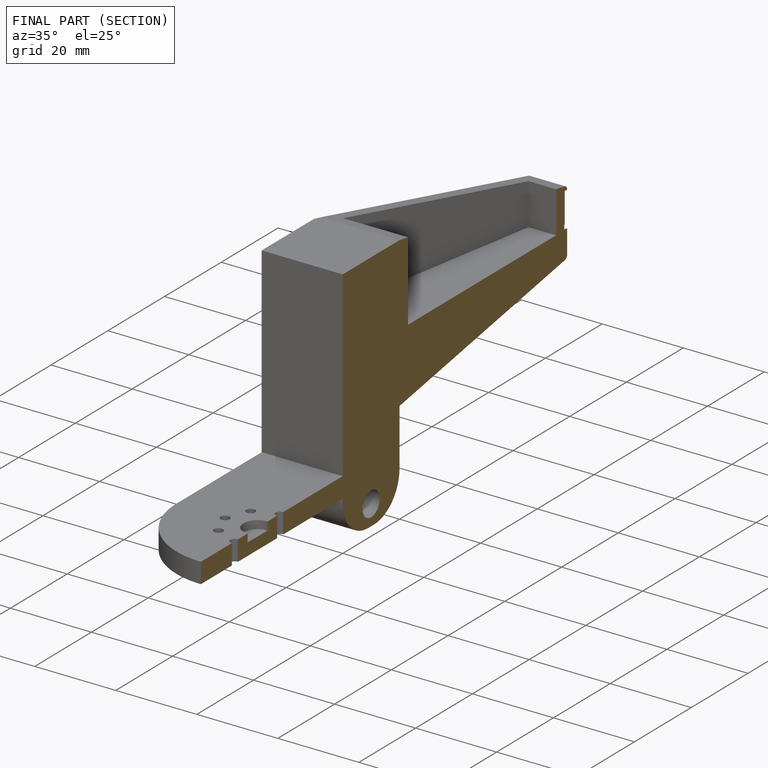
[diagram: finished part — half-section view (interior)]
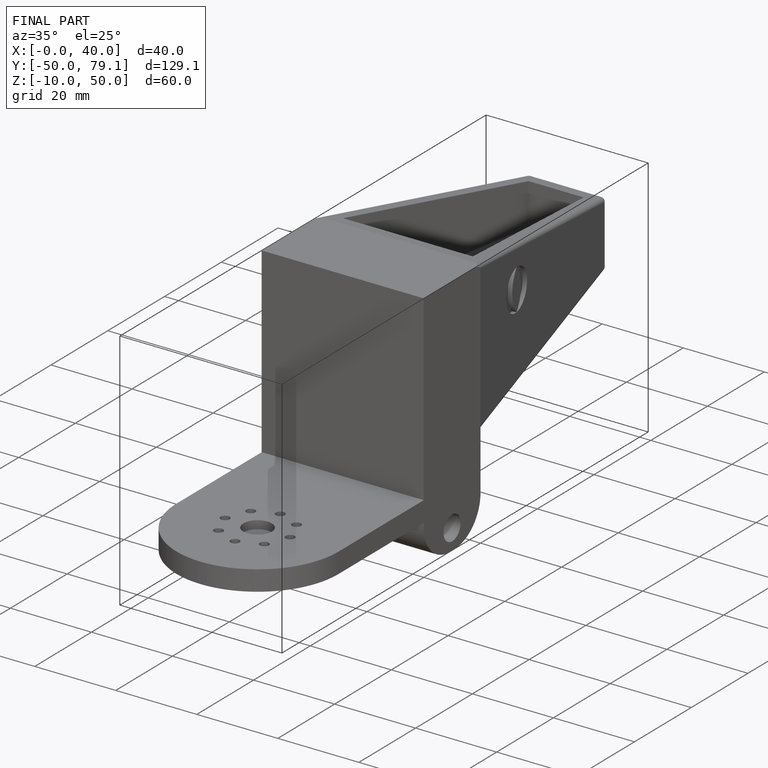
[diagram: finished part — iso view with bounding-box wireframe]
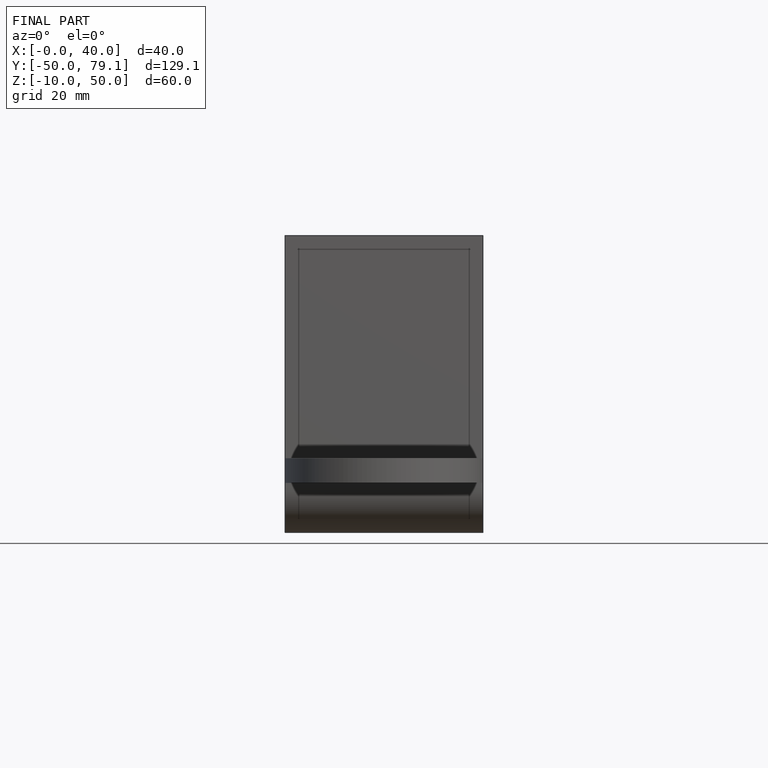
[diagram: finished part — front view with bounding-box wireframe]
